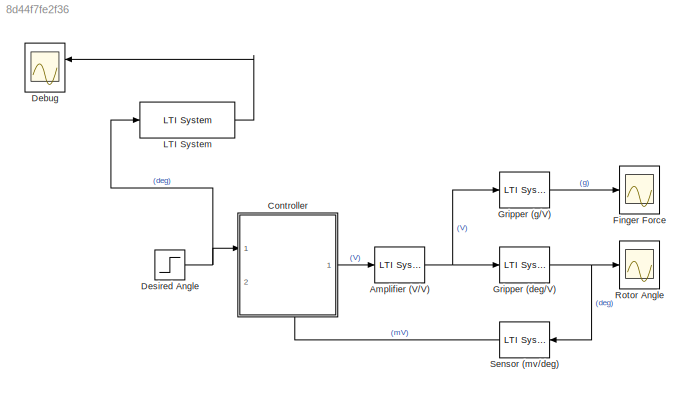
MODEL slx_8d44f7fe2f36
KIND model
CONFIG AbsTol = auto
CONFIG EnableMultiTasking = off
CONFIG FixedStep = auto
CONFIG MaxStep = 1e-6
CONFIG MinStep = auto
CONFIG RelTol = 1e-3
CONFIG SampleTimeConstraint = Unconstrained
CONFIG SolverName = VariableStepAuto
CONFIG StartTime = 0.0
CONFIG StopTime = 100e-3
BLOCK [Reference] Amplifier (V//V)  REF=cstblocks/LTI System
  NameLocation = top
  Ports = [1, 1]
  SourceBlock = cstblocks/LTI System
  SourceProductBaseCode = CT
  SourceType = LTI Block
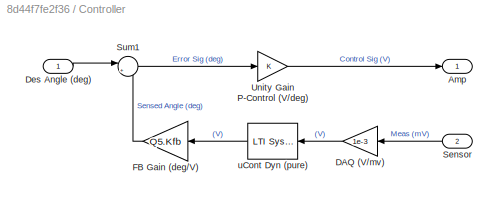
BLOCK [SubSystem] Controller
  NameLocation = top
  PortSchema = {"entries":[{"content":{"sides":[{"content":{"connectorIds":["In1"]},"type":"ConnectorPlacement.EquallySpacedRectSide","uuid":"20a6f550-8556-4a95-ba97-0f0d038d1d17"},{"content":{"connectorIds":["Out1"],"side":"RIGHT"},"type":"ConnectorPlacement.EquallySpacedRectSide","uuid":"637ee4cd-983b-493c-a336-69ccf94ca87f"},{"content":{"connectorIds":[],"side":"TOP"},"type":"ConnectorPlacement.EquallySpacedR...<+389ch>
  Ports = [2, 1]
  RequestExecContextInheritance = off
BLOCK [Outport] Controller/Amp
BLOCK [Gain] Controller/DAQ (V//mv)
  Gain = 1e-3
BLOCK [Inport] Controller/Des Angle (deg)
BLOCK [Gain] Controller/FB Gain (deg//V)
  Gain = Q5.Kfb
BLOCK [Inport] Controller/Sensor
  Port = 2
BLOCK [Sum] Controller/Sum1
  Inputs = |+-
  Ports = [2, 1]
BLOCK [Gain] Controller/Unity Gain P-Control (V//deg)
  NameLocation = top
BLOCK [Reference] Controller/uCont Dyn (pure)  REF=cstblocks/LTI System
  Ports = [1, 1]
  SourceBlock = cstblocks/LTI System
  SourceProductBaseCode = CT
  SourceType = LTI Block
BLOCK [Scope] Debug
  Floating = off
  NameLocation = top
  NumInputPorts = 2
  Ports = [2]
  ScopeSpecificationString = Simulink.scopes.TimeScopeBlockCfg('CurrentConfiguration', extmgr.ConfigurationSet(extmgr.Configuration('Core','General UI',true),extmgr.Configuration('Core','Source UI',true),extmgr.Configuration('Sources','WiredSimulink',true,'DataLoggingVariableName','ScopeData1'),extmgr.Configuration('Visuals','Time Domain',true,'SerializedDisplays',{struct('MinYLimReal','-118.7122','MaxYLimReal','190.70421','Y...<+2115ch>
BLOCK [Step] Desired Angle
  After = 120
  NameLocation = top
  SampleTime = 0
  Time = 0
BLOCK [Scope] Finger Force
  Floating = off
  NameLocation = top
  NumInputPorts = 1
  Ports = [1]
  ScopeSpecificationString = Simulink.scopes.TimeScopeBlockCfg('CurrentConfiguration', extmgr.ConfigurationSet(extmgr.Configuration('Core','General UI',true),extmgr.Configuration('Core','Source UI',true),extmgr.Configuration('Sources','WiredSimulink',true,'DataLoggingVariableName','ScopeData1'),extmgr.Configuration('Visuals','Time Domain',true,'SerializedDisplays',{struct('MinYLimReal','-118.7122','MaxYLimReal','190.70421','Y...<+1695ch>
BLOCK [Reference] Gripper (deg//V)  REF=cstblocks/LTI System
  NameLocation = top
  Ports = [1, 1]
  SourceBlock = cstblocks/LTI System
  SourceProductBaseCode = CT
  SourceType = LTI Block
BLOCK [Reference] Gripper (g//V)  REF=cstblocks/LTI System
  NameLocation = top
  Ports = [1, 1]
  SourceBlock = cstblocks/LTI System
  SourceProductBaseCode = CT
  SourceType = LTI Block
BLOCK [Reference] LTI System  REF=cstblocks/LTI System
  Ports = [1, 1]
  SourceBlock = cstblocks/LTI System
  SourceProductBaseCode = CT
  SourceType = LTI Block
BLOCK [Scope] Rotor Angle
  Floating = off
  NameLocation = top
  NumInputPorts = 1
  Ports = [1]
  ScopeSpecificationString = Simulink.scopes.TimeScopeBlockCfg('CurrentConfiguration', extmgr.ConfigurationSet(extmgr.Configuration('Core','General UI',true),extmgr.Configuration('Core','Source UI',true),extmgr.Configuration('Sources','WiredSimulink',true,'DataLoggingVariableName','ScopeData2'),extmgr.Configuration('Visuals','Time Domain',true,'SerializedDisplays',{struct('MinYLimReal','-35.78954','MaxYLimReal','313.14614','Y...<+1698ch>
BLOCK [Reference] Sensor (mv//deg)  REF=cstblocks/LTI System
  Ports = [1, 1]
  SourceBlock = cstblocks/LTI System
  SourceProductBaseCode = CT
  SourceType = LTI Block
NET Amplifier (V//V):1 -> Gripper (deg//V):1, Gripper (g//V):1
LINE Controller/DAQ (V//mv):1 -> Controller/uCont Dyn (pure):1
LINE Controller/Des Angle (deg):1 -> Controller/Sum1:1
LINE Controller/FB Gain (deg//V):1 -> Controller/Sum1:2
LINE Controller/Sensor:1 -> Controller/DAQ (V//mv):1
LINE Controller/Sum1:1 -> Controller/Unity Gain P-Control (V//deg):1
LINE Controller/Unity Gain P-Control (V//deg):1 -> Controller/Amp:1
LINE Controller/uCont Dyn (pure):1 -> Controller/FB Gain (deg//V):1
LINE Controller:1 -> Amplifier (V//V):1
NET Desired Angle:1 -> Controller:1, LTI System:1
NET Gripper (deg//V):1 -> Rotor Angle:1, Sensor (mv//deg):1
LINE Gripper (g//V):1 -> Finger Force:1
LINE LTI System:1 -> Debug:1
LINE Sensor (mv//deg):1 -> Controller:2
note: NET lines group one-source signal fan-out (src -> all destinations, sorted); 1:1 wires keep LINE
